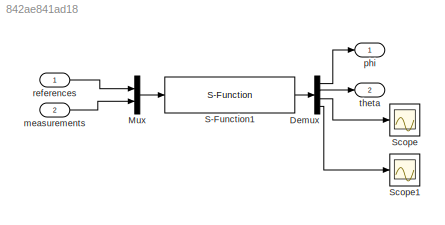
MODEL slx_842ae841ad18
KIND model
CONFIG AbsTol = auto
CONFIG FixedStep = auto
CONFIG MaxStep = auto
CONFIG MinStep = auto
CONFIG RelTol = 1e-3
CONFIG SampleTimeConstraint = Unconstrained
CONFIG Solver = VariableStepAuto
CONFIG SolverMode = Auto
CONFIG SolverName = VariableStepAuto
CONFIG StartTime = 0.0
CONFIG StopTime = 50
BLOCK [Demux] Demux
  DisplayOption = bar
  Ports = [1, 4]
BLOCK [Mux] Mux
  DisplayOption = bar
  Inputs = 2
  Ports = [2, 1]
BLOCK [S-Function] S-Function1
  EnableBusSupport = off
  FunctionName = sfunc_inner_PID_position_d
  Parameters = PD_position_param
  Ports = [1, 1]
  SFunctionDeploymentMode = off
BLOCK [Scope] Scope
  Ports = [1]
  ScopeSpecificationString = Simulink.scopes.TimeScopeBlockCfg('CurrentConfiguration', extmgr.ConfigurationSet(extmgr.Configuration('Core','General UI',true),extmgr.Configuration('Core','Source UI',true),extmgr.Configuration('Sources','WiredSimulink',true,'DataLoggingLimitDataPoints',true,'DataLoggingSaveFormat','Array','DataLoggingDecimation','1','DataLoggingDecimateData',true),extmgr.Configuration('Visuals','Time Domain',tr...<+1479ch>
BLOCK [Scope] Scope1
  Ports = [1]
  ScopeSpecificationString = C++SS(StrPVP('SaveName','ScopeData'),StrPVP('SaveName','ScopeData1'),StrPVP('LimitDataPoints','on'),StrPVP('DataFormat','Array'),StrPVP('Decimation','1'),StrPVP('BlockParamSampleInput','off'))
BLOCK [Inport] measurements
  IconDisplay = Port number
  Port = 2
  PortDimensions = 12
BLOCK [Outport] phi
  IconDisplay = Port number
BLOCK [Inport] references
  IconDisplay = Port number
  PortDimensions = 12
BLOCK [Outport] theta
  IconDisplay = Port number
  Port = 2
LINE Demux:1 -> phi:1
LINE Demux:2 -> theta:1
LINE Demux:3 -> Scope:1
LINE Demux:4 -> Scope1:1
LINE Mux:1 -> S-Function1:1
LINE S-Function1:1 -> Demux:1
LINE measurements:1 -> Mux:2
LINE references:1 -> Mux:1
